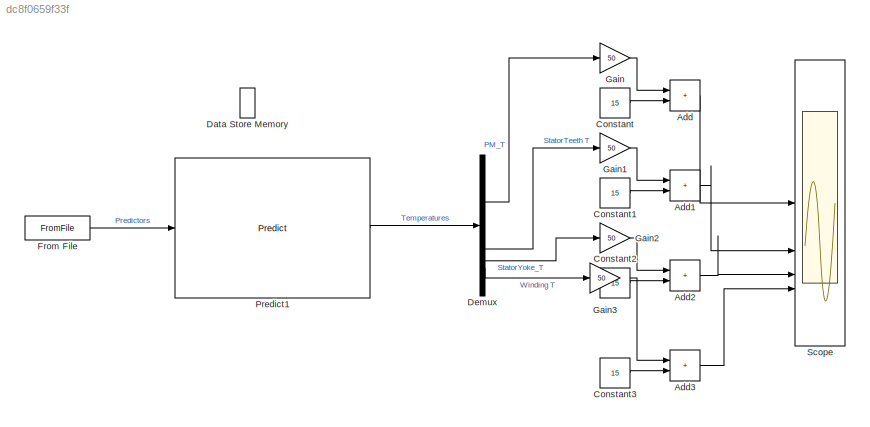
MODEL slx_dc8f0659f33f
KIND model
CONFIG AbsTol = auto
CONFIG EnableMultiTasking = off
CONFIG FixedStep = auto
CONFIG MaxStep = auto
CONFIG MinStep = auto
CONFIG RelTol = 1e-3
CONFIG SampleTimeConstraint = Unconstrained
CONFIG SolverName = FixedStepAuto
CONFIG StartTime = 0
CONFIG StopTime = 15000
WORKSPACE source: mxarray member
WORKSPACE time = -1
BLOCK [Sum] Add
  IconShape = rectangular
BLOCK [Sum] Add1
  IconShape = rectangular
BLOCK [Sum] Add2
  IconShape = rectangular
BLOCK [Sum] Add3
  IconShape = rectangular
BLOCK [Constant] Constant
  Value = 15
BLOCK [Constant] Constant1
  Value = 15
BLOCK [Constant] Constant2
  Value = 15
BLOCK [Constant] Constant3
  Value = 15
BLOCK [DataStoreMemory] Data Store Memory
  DataStoreName = y
  ReadBeforeWriteMsg = warning
  ShowAdditionalParam = off
  WriteAfterReadMsg = warning
  WriteAfterWriteMsg = warning
BLOCK [Demux] Demux
BLOCK [FromFile] From File
  FileName = predictors.mat
  OutDataTypeStr = double
  ZeroCross = on
BLOCK [Gain] Gain
  Gain = 50
BLOCK [Gain] Gain1
  Gain = 50
BLOCK [Gain] Gain2
  Gain = 50
BLOCK [Gain] Gain3
  Gain = 50
BLOCK [Reference] Predict1  REF=deeplib/Predict
  AttributesFormatString = DL-PMSMmodel
  Description = PMSM Predictor that uses DAG network
  SourceBlock = deeplib/Predict
  SourceType = Predict
BLOCK [Scope] Scope
  Floating = off
  NumInputPorts = 4
  ScopeSpecificationString = Simulink.scopes.TimeScopeBlockCfg('CurrentConfiguration', extmgr.ConfigurationSet(extmgr.Configuration('Core','General UI',true),extmgr.Configuration('Core','Source UI',true),extmgr.Configuration('Sources','WiredSimulink',true,'SampleTime','1'),extmgr.Configuration('Visuals','Time Domain',true,'SerializedDisplays',{struct('MinYLimReal','-12.35886','MaxYLimReal','79.84116','YLabelReal','Normalized ...<+1777ch>
LINE Add1:1 -> Scope:2
LINE Add2:1 -> Scope:3
LINE Add3:1 -> Scope:4
LINE Add:1 -> Scope:1
LINE Constant1:1 -> Add1:2
LINE Constant2:1 -> Add2:2
LINE Constant3:1 -> Add3:2
LINE Constant:1 -> Add:2
LINE Demux:1 -> Gain:1
LINE Demux:2 -> Gain1:1
LINE Demux:3 -> Gain2:1
LINE Demux:4 -> Gain3:1
LINE From File:1 -> Predict1:1
LINE Gain1:1 -> Add1:1
LINE Gain2:1 -> Add2:1
LINE Gain3:1 -> Add3:1
LINE Gain:1 -> Add:1
LINE Predict1:1 -> Demux:1
